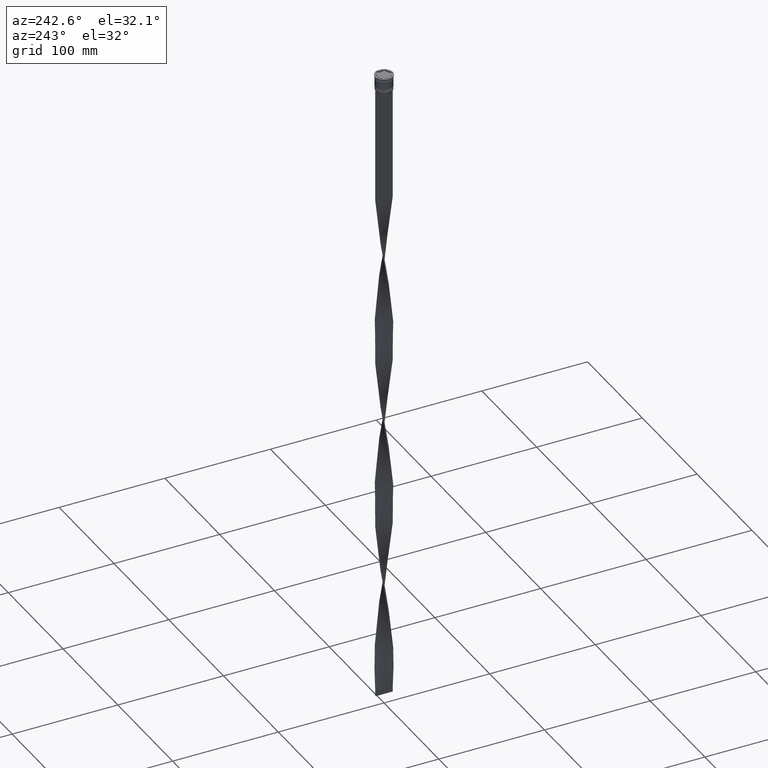
[diagram: clean part render]
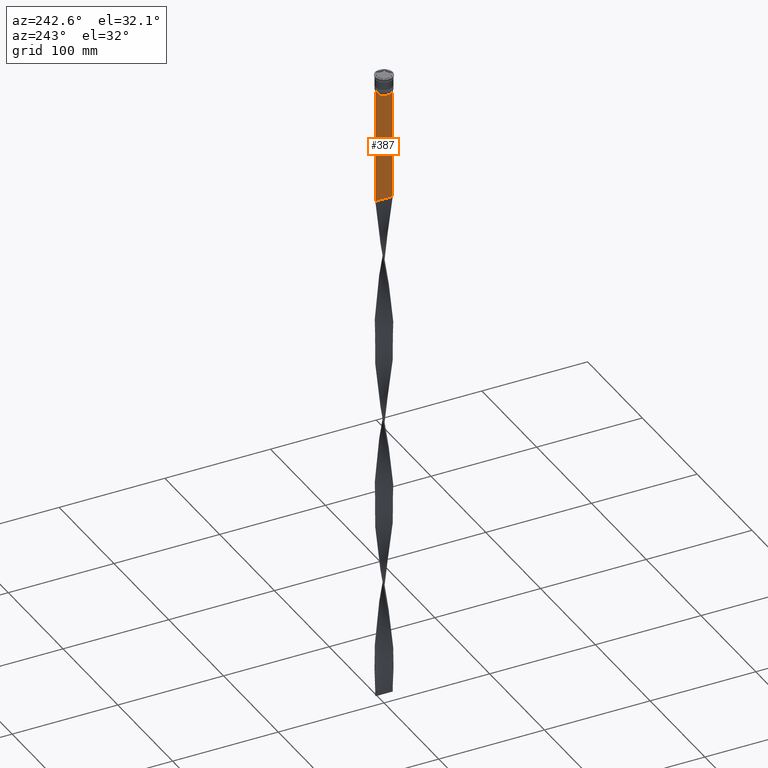
[diagram: same view with one face highlighted and labeled with its STEP entity id]
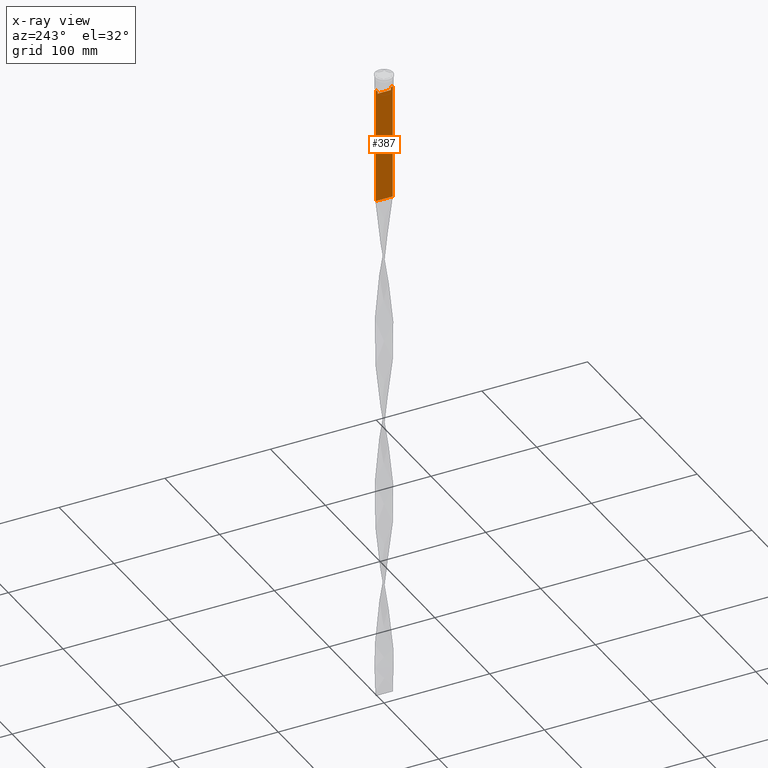
[diagram: x-ray of the same camera — body ghosted, the highlighted face saturated]
A machine part, auxiliary view. The second image highlights one B-rep face of the part: STEP entity #387.
The next image is the same camera in x-ray: the body ghosted, the highlighted face saturated — about 0% of this face is hidden behind the body in this view.
In plain terms, the highlighted planar face has unit normal (-1, 0, 0).
Its self-contained STEP definition (entity closure, byte-faithful):
#16 = DIRECTION ( 'NONE',  ( 0.000000000000000000, 0.000000000000000000, 1.000000000000000000 ) ) ;
#65 = EDGE_CURVE ( 'NONE', #1607, #1753, #890, .T. ) ;
#75 = ORIENTED_EDGE ( 'NONE', *, *, #1010, .F. ) ;
#77 = CARTESIAN_POINT ( 'NONE',  ( -0.4999999999999998890, -6.714736947305992132, -14.16668390685738999 ) ) ;
#80 = ORIENTED_EDGE ( 'NONE', *, *, #1175, .F. ) ;
#82 = CARTESIAN_POINT ( 'NONE',  ( -0.4999999999999998890, -6.380438856379708312, -17.00000000000000000 ) ) ;
#115 = ORIENTED_EDGE ( 'NONE', *, *, #2916, .F. ) ;
#148 = DIRECTION ( 'NONE',  ( 0.000000000000000000, 0.000000000000000000, -1.000000000000000000 ) ) ;
#232 = CARTESIAN_POINT ( 'NONE',  ( -0.4999999999999998890, 6.399999999999999467, -17.00000000000000000 ) ) ;
#261 = LINE ( 'NONE', #2019, #1497 ) ;
#280 = CARTESIAN_POINT ( 'NONE',  ( -0.4999999999999998890, -8.000000000000003553, 2.031219541881394530 ) ) ;
#288 = DIRECTION ( 'NONE',  ( 0.000000000000000000, -1.000000000000000000, 0.000000000000000000 ) ) ;
#299 = DIRECTION ( 'NONE',  ( -1.000000000000000000, 0.000000000000000000, 0.000000000000000000 ) ) ;
#377 = B_SPLINE_CURVE_WITH_KNOTS ( 'NONE', 3,
 ( #1079, #2119, #1474, #405 ),
 .UNSPECIFIED., .F., .F.,
 ( 4, 4 ),
 ( 0.01172465562756038263, 0.01243276816391822651 ),
 .UNSPECIFIED. ) ;
#387 = ADVANCED_FACE ( 'NONE', ( #644 ), #2015, .T. ) ;
#405 = CARTESIAN_POINT ( 'NONE',  ( -0.4999999999999998890, 6.380438856379708312, -14.50000000000000000 ) ) ;
#416 = EDGE_CURVE ( 'NONE', #2297, #3438, #2717, .T. ) ;
#420 = VERTEX_POINT ( 'NONE', #4036 ) ;
#449 = ORIENTED_EDGE ( 'NONE', *, *, #640, .F. ) ;
#573 = CARTESIAN_POINT ( 'NONE',  ( -0.4999999999999998890, -6.380438856379708312, -14.50000000000000000 ) ) ;
#621 = DIRECTION ( 'NONE',  ( 0.000000000000000000, 1.000000000000000000, 0.000000000000000000 ) ) ;
#640 = EDGE_CURVE ( 'NONE', #1229, #2297, #3517, .T. ) ;
#644 = FACE_OUTER_BOUND ( 'NONE', #3103, .T. ) ;
#689 = CARTESIAN_POINT ( 'NONE',  ( -0.4999999999999998890, 6.380438856379708312, -14.50000000000000000 ) ) ;
#702 = VERTEX_POINT ( 'NONE', #1024 ) ;
#831 = CARTESIAN_POINT ( 'NONE',  ( -0.4999999999999998890, -8.000000000000003553, 2.031219541881394530 ) ) ;
#890 = LINE ( 'NONE', #1913, #3489 ) ;
#923 = VECTOR ( 'NONE', #3020, 1000.000000000000000 ) ;
#934 = VERTEX_POINT ( 'NONE', #689 ) ;
#967 = CARTESIAN_POINT ( 'NONE',  ( -0.4999999999999998890, -8.000000000000003553, -123.0000000000000000 ) ) ;
#1010 = EDGE_CURVE ( 'NONE', #934, #4049, #3192, .T. ) ;
#1024 = CARTESIAN_POINT ( 'NONE',  ( -0.4999999999999998890, -6.881860213634098500, -14.00000000000000178 ) ) ;
#1037 = CARTESIAN_POINT ( 'NONE',  ( -0.4999999999999998890, 6.380438856379708312, 0.000000000000000000 ) ) ;
#1053 = CARTESIAN_POINT ( 'NONE',  ( -0.4999999999999998890, -8.000000000000003553, -123.0000000000000000 ) ) ;
#1064 = VECTOR ( 'NONE', #2147, 1000.000000000000000 ) ;
#1079 = CARTESIAN_POINT ( 'NONE',  ( -0.4999999999999998890, 6.881860213634098500, -14.00000000000000178 ) ) ;
#1175 = EDGE_CURVE ( 'NONE', #4049, #1607, #3326, .T. ) ;
#1229 = VERTEX_POINT ( 'NONE', #2845 ) ;
#1285 = VECTOR ( 'NONE', #288, 1000.000000000000000 ) ;
#1366 = EDGE_CURVE ( 'NONE', #1447, #934, #377, .T. ) ;
#1447 = VERTEX_POINT ( 'NONE', #2557 ) ;
#1474 = CARTESIAN_POINT ( 'NONE',  ( -0.4999999999999998890, 6.547597841304911626, -14.33335192459222718 ) ) ;
#1497 = VECTOR ( 'NONE', #2721, 1000.000000000000000 ) ;
#1520 = VERTEX_POINT ( 'NONE', #1524 ) ;
#1524 = CARTESIAN_POINT ( 'NONE',  ( -0.4999999999999998890, -7.884161337770806632, -14.00000000000000178 ) ) ;
#1575 = VECTOR ( 'NONE', #1961, 1000.000000000000000 ) ;
#1587 = EDGE_CURVE ( 'NONE', #2817, #3438, #2238, .T. ) ;
#1607 = VERTEX_POINT ( 'NONE', #82 ) ;
#1612 = ORIENTED_EDGE ( 'NONE', *, *, #3041, .F. ) ;
#1670 = CARTESIAN_POINT ( 'NONE',  ( -0.4999999999999998890, 7.999999999999996447, -123.0000000000000000 ) ) ;
#1753 = VERTEX_POINT ( 'NONE', #573 ) ;
#1832 = CARTESIAN_POINT ( 'NONE',  ( -0.4999999999999998890, -6.881860213634098500, -14.00000000000000178 ) ) ;
#1840 = VECTOR ( 'NONE', #3626, 1000.000000000000000 ) ;
#1913 = CARTESIAN_POINT ( 'NONE',  ( -0.4999999999999998890, -6.380438856379708312, 0.000000000000000000 ) ) ;
#1955 = LINE ( 'NONE', #4380, #1285 ) ;
#1961 = DIRECTION ( 'NONE',  ( 0.000000000000000000, -1.000000000000000000, 0.000000000000000000 ) ) ;
#1973 = LINE ( 'NONE', #3761, #923 ) ;
#2015 = PLANE ( 'NONE',  #3291 ) ;
#2019 = CARTESIAN_POINT ( 'NONE',  ( -0.4999999999999998890, -8.000000000000003553, -14.00000000000000178 ) ) ;
#2067 = DIRECTION ( 'NONE',  ( 0.000000000000000000, 0.000000000000000000, -1.000000000000000000 ) ) ;
#2119 = CARTESIAN_POINT ( 'NONE',  ( -0.4999999999999998890, 6.714736947114692711, -14.16668390704818847 ) ) ;
#2147 = DIRECTION ( 'NONE',  ( 0.000000000000000000, -1.000000000000000000, 0.000000000000000000 ) ) ;
#2180 = EDGE_CURVE ( 'NONE', #1753, #702, #3106, .T. ) ;
#2238 = LINE ( 'NONE', #2876, #4301 ) ;
#2240 = CARTESIAN_POINT ( 'NONE',  ( -0.4999999999999998890, 6.380438856379708312, -17.00000000000000000 ) ) ;
#2297 = VERTEX_POINT ( 'NONE', #1053 ) ;
#2557 = CARTESIAN_POINT ( 'NONE',  ( -0.4999999999999998890, 6.881860213634098500, -14.00000000000000178 ) ) ;
#2622 = LINE ( 'NONE', #4002, #1575 ) ;
#2717 = LINE ( 'NONE', #967, #2994 ) ;
#2721 = DIRECTION ( 'NONE',  ( 0.000000000000000000, -1.000000000000000000, 0.000000000000000000 ) ) ;
#2817 = VERTEX_POINT ( 'NONE', #4289 ) ;
#2845 = CARTESIAN_POINT ( 'NONE',  ( -0.4999999999999998890, -8.000000000000003553, -14.00000000000000178 ) ) ;
#2876 = CARTESIAN_POINT ( 'NONE',  ( -0.4999999999999998890, 7.999999999999996447, 2.031219541881394530 ) ) ;
#2903 = ORIENTED_EDGE ( 'NONE', *, *, #1366, .F. ) ;
#2916 = EDGE_CURVE ( 'NONE', #702, #1520, #261, .T. ) ;
#2994 = VECTOR ( 'NONE', #621, 1000.000000000000000 ) ;
#3020 = DIRECTION ( 'NONE',  ( 0.000000000000000000, -1.000000000000000000, 0.000000000000000000 ) ) ;
#3041 = EDGE_CURVE ( 'NONE', #420, #1447, #1973, .T. ) ;
#3103 = EDGE_LOOP ( 'NONE', ( #2903, #1612, #3409, #3172, #4331, #449, #3379, #115, #3686, #4275, #80, #75 ) ) ;
#3106 = B_SPLINE_CURVE_WITH_KNOTS ( 'NONE', 3,
 ( #3890, #4137, #77, #1832 ),
 .UNSPECIFIED., .F., .F.,
 ( 4, 4 ),
 ( 0.02996184199614749730, 0.03067452609193703841 ),
 .UNSPECIFIED. ) ;
#3172 = ORIENTED_EDGE ( 'NONE', *, *, #1587, .T. ) ;
#3192 = LINE ( 'NONE', #1037, #3495 ) ;
#3291 = AXIS2_PLACEMENT_3D ( 'NONE', #280, #299, #16 ) ;
#3326 = LINE ( 'NONE', #232, #1064 ) ;
#3376 = EDGE_CURVE ( 'NONE', #1520, #1229, #2622, .T. ) ;
#3379 = ORIENTED_EDGE ( 'NONE', *, *, #3376, .F. ) ;
#3409 = ORIENTED_EDGE ( 'NONE', *, *, #3842, .F. ) ;
#3438 = VERTEX_POINT ( 'NONE', #1670 ) ;
#3489 = VECTOR ( 'NONE', #4226, 1000.000000000000000 ) ;
#3495 = VECTOR ( 'NONE', #2067, 1000.000000000000000 ) ;
#3517 = LINE ( 'NONE', #831, #1840 ) ;
#3626 = DIRECTION ( 'NONE',  ( 0.000000000000000000, 0.000000000000000000, -1.000000000000000000 ) ) ;
#3686 = ORIENTED_EDGE ( 'NONE', *, *, #2180, .F. ) ;
#3761 = CARTESIAN_POINT ( 'NONE',  ( -0.4999999999999998890, -8.000000000000003553, -14.00000000000000178 ) ) ;
#3842 = EDGE_CURVE ( 'NONE', #2817, #420, #1955, .T. ) ;
#3890 = CARTESIAN_POINT ( 'NONE',  ( -0.4999999999999998890, -6.380438856379708312, -14.50000000000000000 ) ) ;
#4002 = CARTESIAN_POINT ( 'NONE',  ( -0.4999999999999998890, -8.000000000000003553, -14.00000000000000178 ) ) ;
#4036 = CARTESIAN_POINT ( 'NONE',  ( -0.4999999999999998890, 7.884161337770806632, -14.00000000000000178 ) ) ;
#4049 = VERTEX_POINT ( 'NONE', #2240 ) ;
#4137 = CARTESIAN_POINT ( 'NONE',  ( -0.4999999999999998890, -6.547597841511246131, -14.33335192438652328 ) ) ;
#4226 = DIRECTION ( 'NONE',  ( -0.000000000000000000, -0.000000000000000000, 1.000000000000000000 ) ) ;
#4275 = ORIENTED_EDGE ( 'NONE', *, *, #65, .F. ) ;
#4289 = CARTESIAN_POINT ( 'NONE',  ( -0.4999999999999998890, 7.999999999999996447, -14.00000000000000178 ) ) ;
#4301 = VECTOR ( 'NONE', #148, 1000.000000000000000 ) ;
#4331 = ORIENTED_EDGE ( 'NONE', *, *, #416, .F. ) ;
#4380 = CARTESIAN_POINT ( 'NONE',  ( -0.4999999999999998890, -8.000000000000003553, -14.00000000000000178 ) ) ;